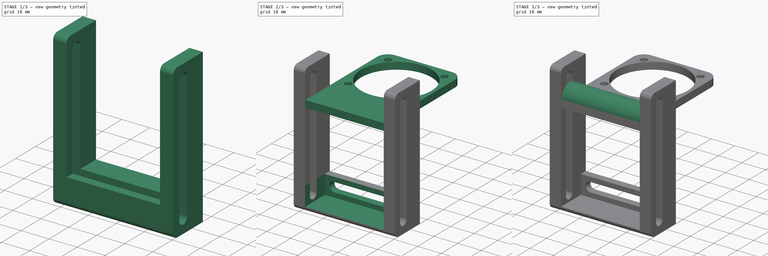
[diagram: build sequence overview — one tinted view per stage of 3, left to right]
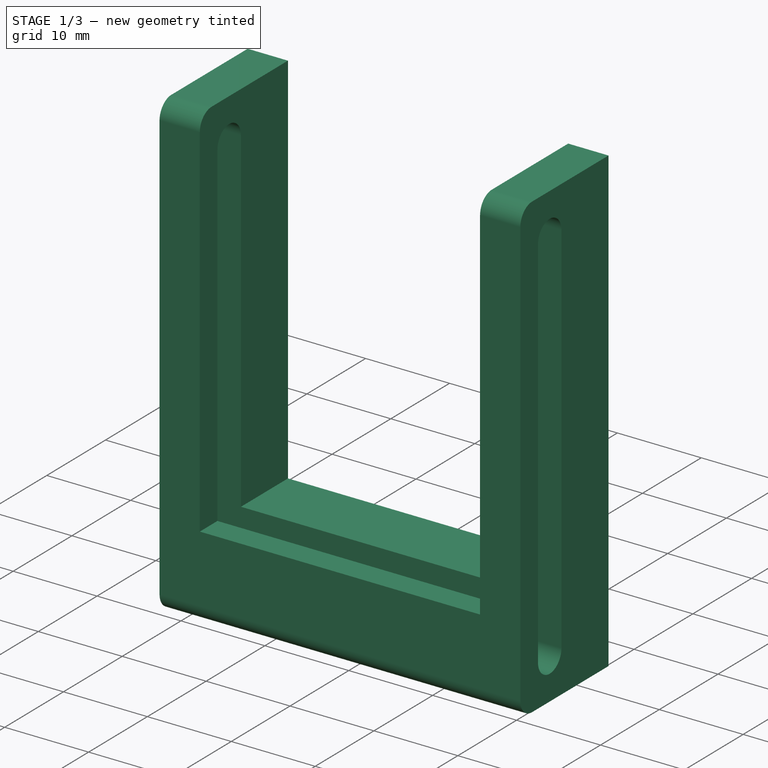
[diagram: stage 1 of 3 — iso view after this stage's code; geometry added in this stage tinted green]
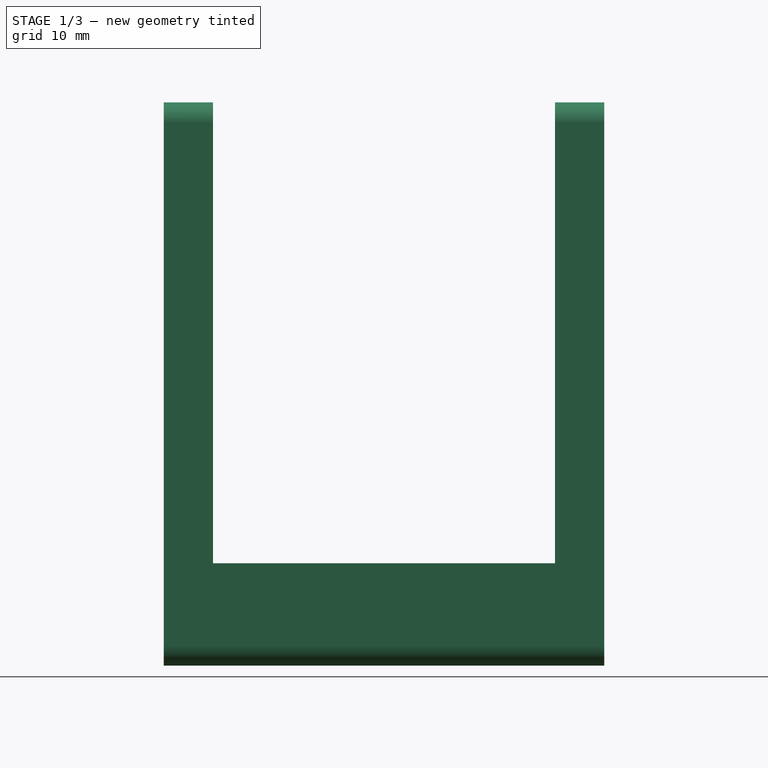
[diagram: stage 1 of 3 — front view after this stage's code; geometry added in this stage tinted green]
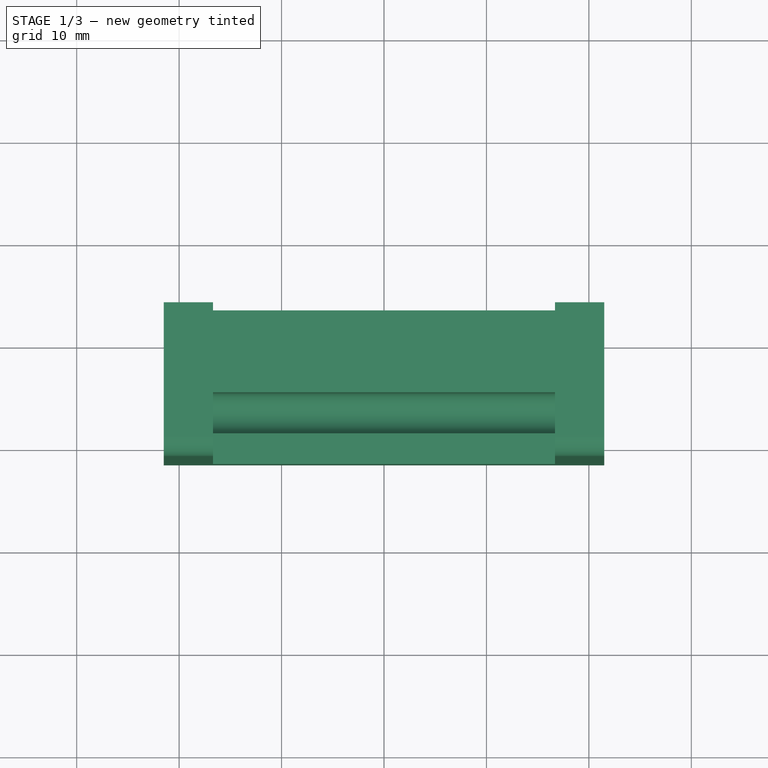
[diagram: stage 1 of 3 — top view after this stage's code; geometry added in this stage tinted green]
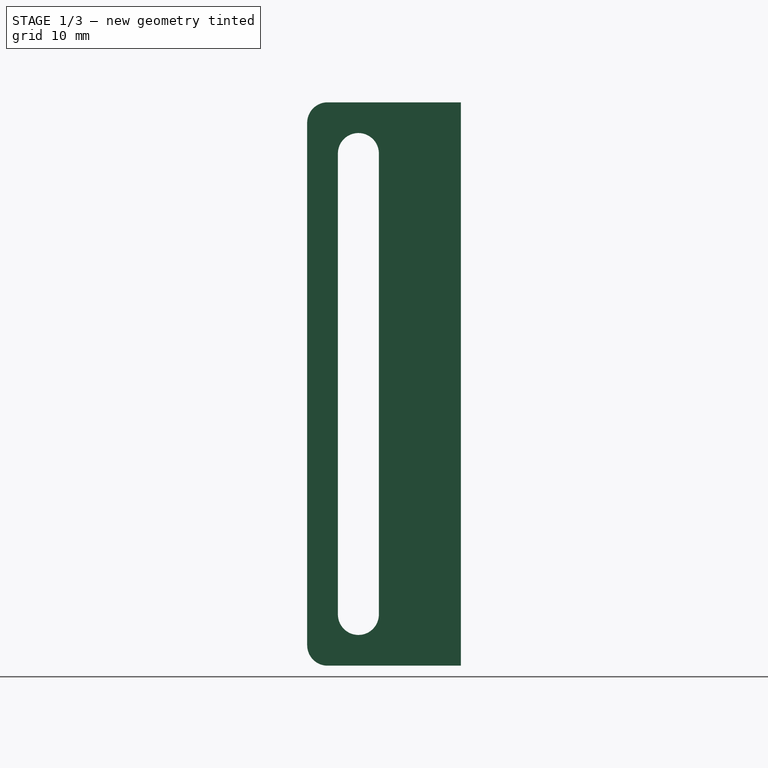
[diagram: stage 1 of 3 — right view after this stage's code; geometry added in this stage tinted green]
FCSTD DOCUMENT  (FreeCAD 0.19R24366 (Git))
Label: Fan30Stand2
License: All rights reserved
LicenseURL: http://en.wikipedia.org/wiki/All_rights_reserved
objects: Sketcher::SketchObject×7, PartDesign::Pocket×4, PartDesign::Pad×3, PartDesign::Body×2
note: 23 computed .brp shape members not serialized (recipe doc carries the construction recipe); baked Part::Feature solids carry a one-line shape summary decoded from their .brp

FEATURE [PartDesign::Body] Body  label="FanBracket"
  Group = -> [Sketch,Pad,Sketch001,Pad001,Sketch002,Pocket]
  Origin = -> Origin
  Tip = -> Pocket
FEATURE [Sketcher::SketchObject] Sketch003
  FullyConstrained = true
  MapMode = 5
  Placement = pos=(0,0,0) rot=(0.57735,0.57735,0.57735;2.0944rad)
  Support = -> [YZ_Plane001]
  sketch-geometry (15):
    g0: Circle CenterX=-26.5 CenterY=10 CenterZ=0 NormalX=0 NormalY=0 NormalZ=1 AngleXU=0 Radius=2
    g1: LineSegment StartX=-16.5 StartY=15 StartZ=0 EndX=-16.5 EndY=-40 EndZ=0
    g2: LineSegment StartX=-31.5 StartY=13 StartZ=0 EndX=-31.5 EndY=-38 EndZ=0
    g3: LineSegment StartX=-29.5 StartY=15 StartZ=0 EndX=-16.5 EndY=15 EndZ=0
    g4: ArcOfCircle CenterX=-29.5 CenterY=13 CenterZ=0 NormalX=0 NormalY=0 NormalZ=1 AngleXU=0 Radius=2 StartAngle=1.5708 EndAngle=3.14159
    g5: GeomPoint X=-31.5 Y=15 Z=0
    g6: ArcOfCircle CenterX=-26.5 CenterY=10 CenterZ=0 NormalX=0 NormalY=0 NormalZ=1 AngleXU=0 Radius=2 StartAngle=5e-16 EndAngle=3.14159
    g7: ArcOfCircle CenterX=-26.5 CenterY=-35 CenterZ=0 NormalX=0 NormalY=0 NormalZ=1 AngleXU=0 Radius=2 StartAngle=3.14159 EndAngle=6.28319
    g8: LineSegment StartX=-28.5 StartY=10 StartZ=0 EndX=-28.5 EndY=-35 EndZ=0
    g9: LineSegment StartX=-24.5 StartY=10 StartZ=0 EndX=-24.5 EndY=-35 EndZ=0
    g10: LineSegment StartX=-16.5 StartY=-40 StartZ=0 EndX=-29.5 EndY=-40 EndZ=0
    g11: ArcOfCircle CenterX=-29.5 CenterY=-38 CenterZ=0 NormalX=0 NormalY=0 NormalZ=1 AngleXU=0 Radius=2 StartAngle=3.14159 EndAngle=4.71239
    g12: GeomPoint X=-31.5 Y=-40 Z=0
    g13: LineSegment StartX=-26.5 StartY=-37 StartZ=0 EndX=-26.5 EndY=-40 EndZ=0
    g14: LineSegment StartX=-26.5 StartY=15 StartZ=0 EndX=-26.5 EndY=12 EndZ=0
  constraints (40):
    c: Vertical(g1)
    c: Vertical(g2)
    c: Coincident(g3,g1)
    c: Horizontal(g3)
    c: PointOnObject(g5,g2)
    c: PointOnObject(g5,g3)
    c: Tangent(g2,g4) = -1.5708
    c: Tangent(g3,g4) = 1.5708
    c: DistanceX(g0,g1) = 10
    c: DistanceX(g5,g1) = 15
    c: Tangent(g6,g9) = 1.5708
    c: Tangent(g6,g8) = -1.5708
    c: Tangent(g8,g7) = -1.5708
    c: Tangent(g9,g7) = 1.5708
    c: Vertical(g8)
    c: Equal(g6,g7)
    c: Coincident(g6,g0)
    c: PointOnObject(g6,g0)
    c: Diameter(g0) = 4
    c: DistanceY(g1,g1) = 55
    c: Coincident(g10,g1)
    c: Horizontal(g10)
    c: PointOnObject(g12,g2)
    c: PointOnObject(g12,g10)
    c: Tangent(g2,g11) = -1.5708
    c: Tangent(g10,g11) = 1.5708
    c: Equal(g11,g4)
    c: Radius(g11) = 2
    c: PointOnObject(g13,g7)
    c: PointOnObject(g13,g10)
    c: Vertical(g13)
    c: Perpendicular(g7,g13)
    c: PointOnObject(g14,g3)
    c: PointOnObject(g14,g6)
    c: Vertical(g14)
    c: Perpendicular(g6,g14)
    c: Equal(g14,g13)
    c: DistanceY(g13,g13) = 3
    c: DistanceX(g1) = -16.5
    c: DistanceY(g1) = -40
FEATURE [PartDesign::Pad] Pad002
  Direction = (1,1,1)
  Length = 43
  Length2 = 100
  Midplane = true
  Placement = pos=(0,0,0) rot=(0.57735,0.57735,0.57735;2.0944rad)
  Profile = -> Sketch003
  Type = 0
FEATURE [Sketcher::SketchObject] Sketch004
  ExternalGeometry = -> [Pad002]
  FullyConstrained = true
  MapMode = 5
  Placement = pos=(0,0,0) rot=(1,0,0;1.5708rad)
  Support = -> [XZ_Plane001]
  sketch-geometry (4):
    g0: LineSegment StartX=-16.7 StartY=15 StartZ=0 EndX=16.7 EndY=15 EndZ=0
    g1: LineSegment StartX=16.7 StartY=15 StartZ=0 EndX=16.7 EndY=-30 EndZ=0
    g2: LineSegment StartX=16.7 StartY=-30 StartZ=0 EndX=-16.7 EndY=-30 EndZ=0
    g3: LineSegment StartX=-16.7 StartY=-30 StartZ=0 EndX=-16.7 EndY=15 EndZ=0
  constraints (11):
    c: Coincident(g0,g1)
    c: Coincident(g1,g2)
    c: Coincident(g2,g3)
    c: Coincident(g3,g0)
    c: Horizontal(g2)
    c: Vertical(g1)
    c: Vertical(g3)
    c: PointOnObject(g0,g-3)
    c: Symmetric(g0,g0,g-2)
    c: DistanceX(g-3,g0) = 4.8
    c: DistanceY(g-4,g2) = 10
FEATURE [PartDesign::Pocket] Pocket001
  BaseFeature = -> Pad002
  Length = 5
  Length2 = 100
  Midplane = true
  Placement = pos=(0,0,0) rot=(0.57735,0.57735,0.57735;2.0944rad)
  Profile = -> Sketch004
  Type = 1
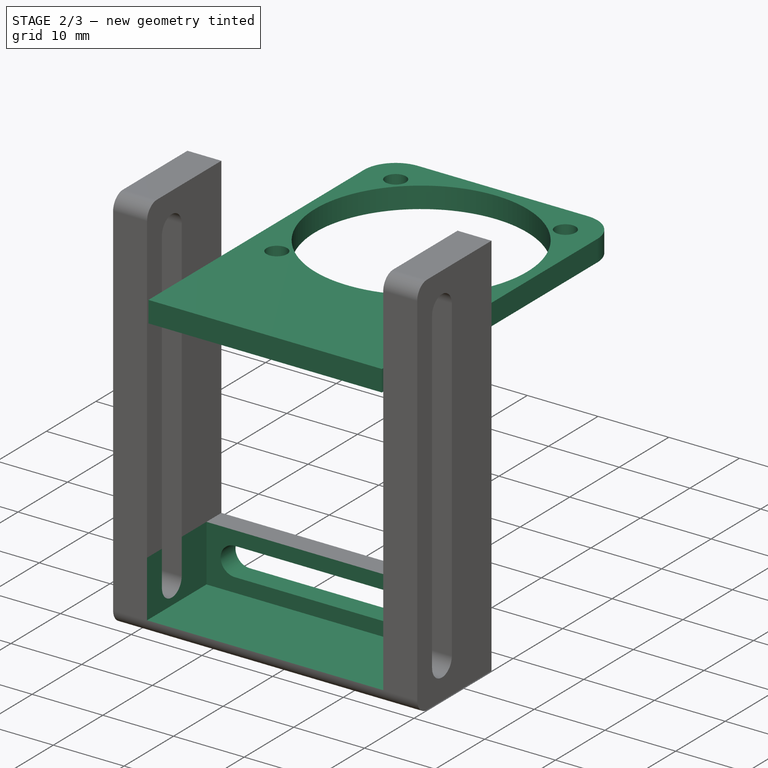
[diagram: stage 2 of 3 — iso view after this stage's code; geometry added in this stage tinted green]
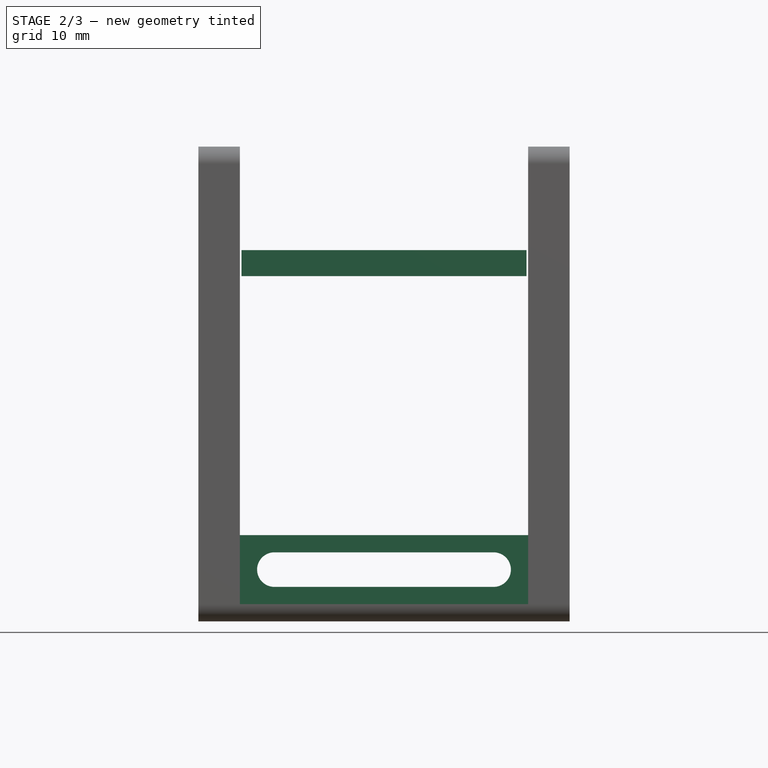
[diagram: stage 2 of 3 — front view after this stage's code; geometry added in this stage tinted green]
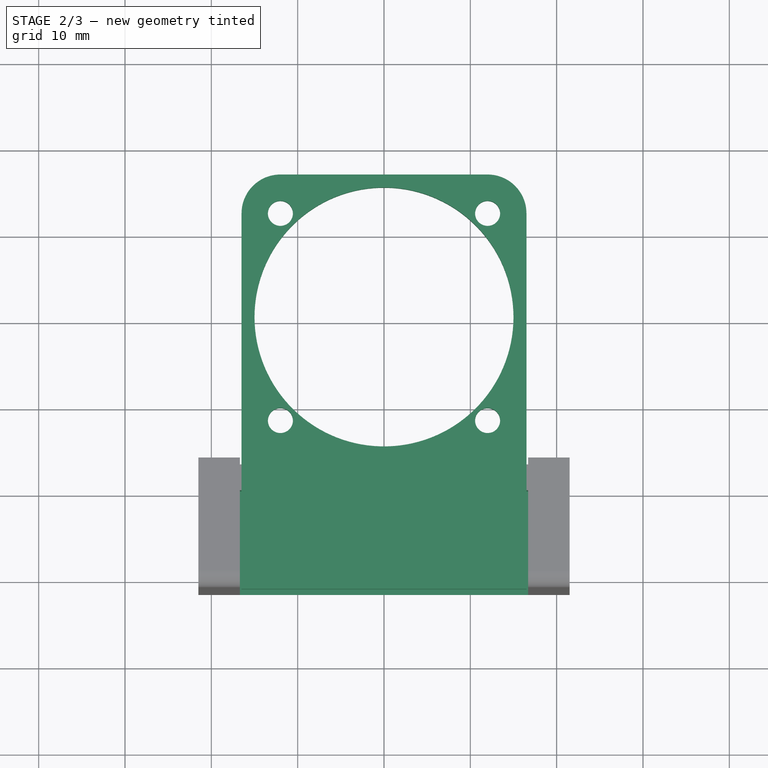
[diagram: stage 2 of 3 — top view after this stage's code; geometry added in this stage tinted green]
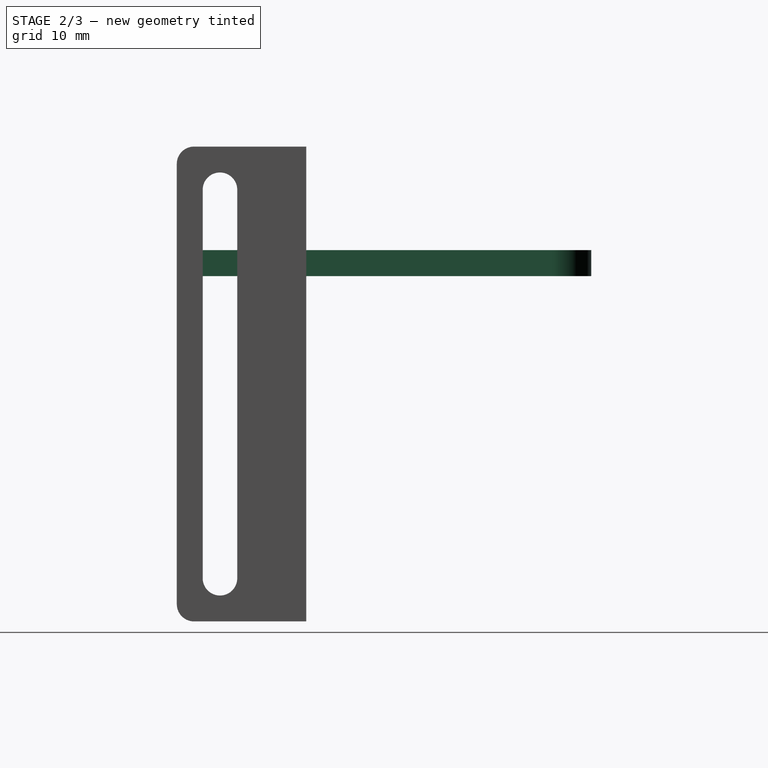
[diagram: stage 2 of 3 — right view after this stage's code; geometry added in this stage tinted green]
FEATURE [Sketcher::SketchObject] Sketch
  FullyConstrained = true
  MapMode = 5
  Support = -> [XY_Plane]
  sketch-geometry (24):
    g0: Circle CenterX=-12 CenterY=12 CenterZ=0 NormalX=0 NormalY=0 NormalZ=1 AngleXU=0 Radius=1.45
    g1: Circle CenterX=12 CenterY=12 CenterZ=0 NormalX=0 NormalY=0 NormalZ=1 AngleXU=0 Radius=1.45
    g2: Circle CenterX=-12 CenterY=-12 CenterZ=0 NormalX=0 NormalY=0 NormalZ=1 AngleXU=0 Radius=1.45
    g3: Circle CenterX=12 CenterY=-12 CenterZ=0 NormalX=0 NormalY=0 NormalZ=1 AngleXU=0 Radius=1.45
    g4: LineSegment StartX=-12 StartY=12 StartZ=0 EndX=12 EndY=12 EndZ=0
    g5: LineSegment StartX=12 StartY=12 StartZ=0 EndX=12 EndY=-12 EndZ=0
    g6: LineSegment StartX=12 StartY=-12 StartZ=0 EndX=-12 EndY=-12 EndZ=0
    g7: LineSegment StartX=-12 StartY=-12 StartZ=0 EndX=-12 EndY=12 EndZ=0
    g8: Circle CenterX=0 CenterY=0 CenterZ=0 NormalX=0 NormalY=0 NormalZ=1 AngleXU=0 Radius=15
    g9: LineSegment StartX=-12 StartY=16.5 StartZ=0 EndX=12 EndY=16.5 EndZ=0
    g10: LineSegment StartX=16.5 StartY=12 StartZ=0 EndX=16.5 EndY=-12 EndZ=0
    g11: LineSegment StartX=12 StartY=-16.5 StartZ=0 EndX=-12 EndY=-16.5 EndZ=0
    g12: LineSegment StartX=-16.5 StartY=-12 StartZ=0 EndX=-16.5 EndY=12 EndZ=0
    g13: ArcOfCircle CenterX=-12 CenterY=12 CenterZ=0 NormalX=0 NormalY=0 NormalZ=1 AngleXU=0 Radius=4.5 StartAngle=1.5708 EndAngle=3.14159
    g14: GeomPoint X=-16.5 Y=16.5 Z=0
    g15: ArcOfCircle CenterX=12 CenterY=12 CenterZ=0 NormalX=0 NormalY=0 NormalZ=1 AngleXU=0 Radius=4.5 StartAngle=3e-16 EndAngle=1.5708
    g16: GeomPoint X=16.5 Y=16.5 Z=0
    g17: ArcOfCircle CenterX=12 CenterY=-12 CenterZ=0 NormalX=0 NormalY=0 NormalZ=1 AngleXU=0 Radius=4.5 StartAngle=4.71239 EndAngle=6.28319
    g18: GeomPoint X=16.5 Y=-16.5 Z=0
    g19: ArcOfCircle CenterX=-12 CenterY=-12 CenterZ=0 NormalX=0 NormalY=0 NormalZ=1 AngleXU=0 Radius=4.5 StartAngle=3.14159 EndAngle=4.71239
    g20: GeomPoint X=-16.5 Y=-16.5 Z=0
    g21: LineSegment StartX=-16.5 StartY=-12 StartZ=0 EndX=-16.5 EndY=-31.5 EndZ=0
    g22: LineSegment StartX=16.5 StartY=-31.5 StartZ=0 EndX=16.5 EndY=-12 EndZ=0
    g23: LineSegment StartX=-16.5 StartY=-31.5 StartZ=0 EndX=16.5 EndY=-31.5 EndZ=0
  constraints (53):
    c: Coincident(g4,g5)
    c: Coincident(g5,g6)
    c: Coincident(g6,g7)
    c: Coincident(g7,g4)
    c: Horizontal(g4)
    c: Vertical(g7)
    c: Coincident(g4,g0)
    c: Coincident(g4,g1)
    c: Coincident(g5,g3)
    c: Coincident(g6,g2)
    c: Symmetric(g2,g3,g-2)
    c: Symmetric(g1,g3,g-1)
    c: Diameter(g0) = 2.9
    c: Equal(g0,g1)
    c: Equal(g0,g3)
    c: Equal(g0,g2)
    c: Equal(g4,g7)
    c: Distance(g5) = 24
    c: Coincident(g8,g-1)
    c: Diameter(g8) = 30
    c: Horizontal(g11)
    c: Vertical(g12)
    c: Symmetric(g18,g16,g-1)
    c: Symmetric(g14,g16,g-2)
    c: PointOnObject(g14,g9)
    c: PointOnObject(g14,g12)
    c: Tangent(g9,g13) = 1.5708
    c: Tangent(g12,g13) = 1.5708
    c: PointOnObject(g16,g9)
    c: PointOnObject(g16,g10)
    c: Tangent(g9,g15) = 1.5708
    c: Tangent(g10,g15) = 1.5708
    c: PointOnObject(g18,g10)
    c: PointOnObject(g18,g11)
    c: Tangent(g10,g17) = 1.5708
    c: Tangent(g11,g17) = 1.5708
    c: PointOnObject(g20,g11)
    c: PointOnObject(g20,g12)
    c: Tangent(g11,g19) = 1.5708
    c: Tangent(g12,g19) = 1.5708
    c: Equal(g12,g11)
    c: Coincident(g19,g2)
    c: Equal(g19,g13)
    c: Equal(g13,g15)
    c: Distance(g20,g18) = 33
    c: Coincident(g21,g12)
    c: Coincident(g22,g10)
    c: Vertical(g22)
    c: DistanceY(g21,g11) = 15
    c: Vertical(g21)
    c: Coincident(g23,g21)
    c: Coincident(g23,g22)
    c: Horizontal(g23)
FEATURE [PartDesign::Pad] Pad
  Direction = (1,1,1)
  Length = 3
  Length2 = 100
  Profile = -> Sketch
  Refine = true
  Type = 0
FEATURE [Sketcher::SketchObject] Sketch005
  AttachmentOffset = pos=(0,0,32.5) rot=(0,0,1;0rad)
  ExternalGeometry = -> [Pocket001]
  FullyConstrained = true
  MapMode = 5
  Placement = pos=(0,-32.5,7.2e-15) rot=(1,0,0;1.5708rad)
  Support = -> [XZ_Plane001]
  sketch-geometry (4):
    g0: LineSegment StartX=-16.7 StartY=-30 StartZ=0 EndX=16.7 EndY=-30 EndZ=0
    g1: LineSegment StartX=16.7 StartY=-30 StartZ=0 EndX=16.7 EndY=-38 EndZ=0
    g2: LineSegment StartX=16.7 StartY=-38 StartZ=0 EndX=-16.7 EndY=-38 EndZ=0
    g3: LineSegment StartX=-16.7 StartY=-38 StartZ=0 EndX=-16.7 EndY=-30 EndZ=0
  constraints (10):
    c: Coincident(g0,g1)
    c: Coincident(g1,g2)
    c: Coincident(g2,g3)
    c: Coincident(g3,g0)
    c: Horizontal(g2)
    c: Vertical(g1)
    c: Vertical(g3)
    c: Coincident(g0,g-3)
    c: Coincident(g-3,g0)
    c: DistanceY(g-4,g1) = 2
FEATURE [PartDesign::Pocket] Pocket002
  BaseFeature = -> Pocket001
  Length = 13
  Length2 = 100
  Placement = pos=(0,0,0) rot=(0.57735,0.57735,0.57735;2.0944rad)
  Profile = -> Sketch005
  Type = 0
FEATURE [Sketcher::SketchObject] Sketch006
  ExternalGeometry = -> [Pocket002]
  FullyConstrained = true
  MapMode = 5
  Placement = pos=(0,0,0) rot=(1,0,0;1.5708rad)
  Support = -> [XZ_Plane001]
  sketch-geometry (6):
    g0: ArcOfCircle CenterX=-12.7 CenterY=-34 CenterZ=0 NormalX=0 NormalY=0 NormalZ=1 AngleXU=0 Radius=2 StartAngle=1.5708 EndAngle=4.71239
    g1: ArcOfCircle CenterX=12.7 CenterY=-34 CenterZ=0 NormalX=0 NormalY=0 NormalZ=1 AngleXU=0 Radius=2 StartAngle=4.71239 EndAngle=7.85398
    g2: LineSegment StartX=-12.7 StartY=-36 StartZ=0 EndX=12.7 EndY=-36 EndZ=0
    g3: LineSegment StartX=-12.7 StartY=-32 StartZ=0 EndX=12.7 EndY=-32 EndZ=0
    g4: LineSegment StartX=-14.7 StartY=-34 StartZ=0 EndX=-16.7 EndY=-34 EndZ=0
    g5: LineSegment StartX=14.7 StartY=-34 StartZ=0 EndX=16.7 EndY=-34 EndZ=0
  constraints (17):
    c: Tangent(g0,g3) = 1.5708
    c: Tangent(g0,g2) = -1.5708
    c: Tangent(g2,g1) = -1.5708
    c: Tangent(g3,g1) = 1.5708
    c: Horizontal(g2)
    c: Equal(g0,g1)
    c: PointOnObject(g4,g0)
    c: PointOnObject(g4,g-3)
    c: Horizontal(g4)
    c: PointOnObject(g5,g1)
    c: Horizontal(g5)
    c: Perpendicular(g1,g5)
    c: Perpendicular(g0,g4)
    c: Diameter(g0) = 4
    c: Symmetric(g-4,g-4,g5)
    c: Equal(g5,g4)
    c: DistanceX(g5,g5) = 2
FEATURE [PartDesign::Pocket] Pocket003
  BaseFeature = -> Pocket002
  Length = 5
  Length2 = 100
  Midplane = true
  Placement = pos=(0,0,0) rot=(0.57735,0.57735,0.57735;2.0944rad)
  Profile = -> Sketch006
  Type = 1
FEATURE [PartDesign::Body] Body001  label="FanSupport"
  Group = -> [Sketch003,Pad002,Sketch004,Pocket001,Sketch005,Pocket002,Sketch006,Pocket003]
  Origin = -> Origin001
  Tip = -> Pocket003
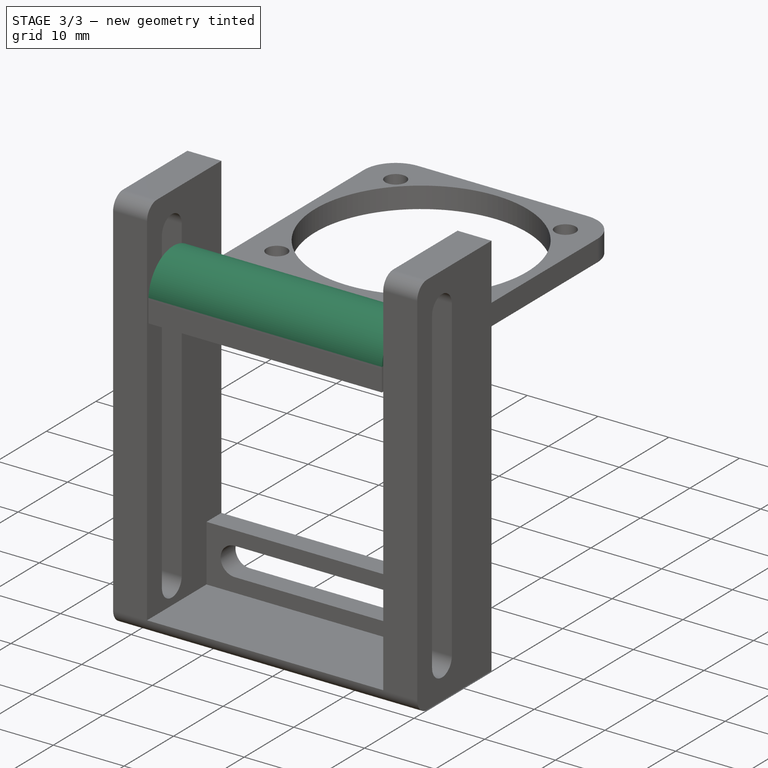
[diagram: stage 3 of 3 — iso view after this stage's code; geometry added in this stage tinted green]
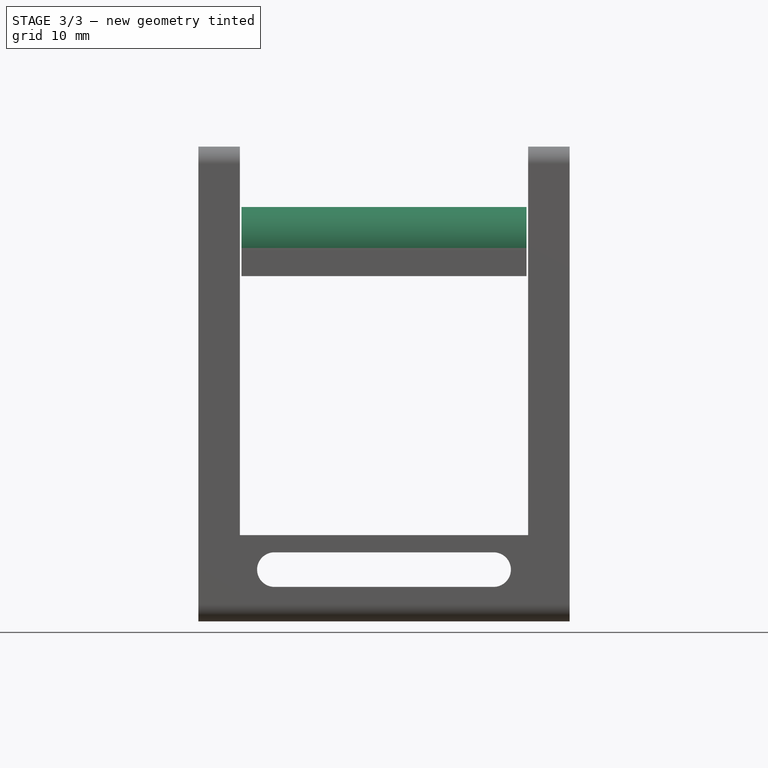
[diagram: stage 3 of 3 — front view after this stage's code; geometry added in this stage tinted green]
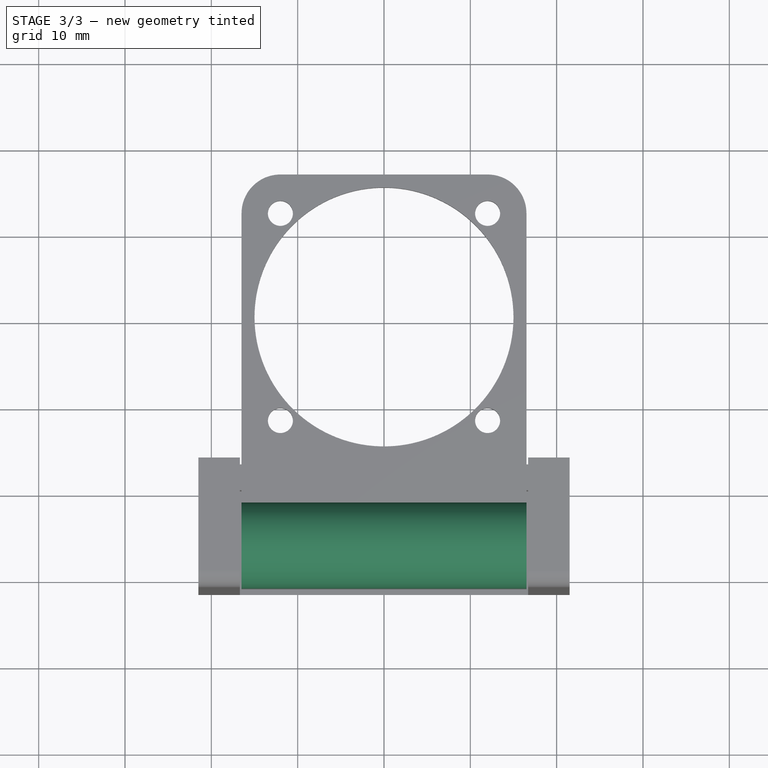
[diagram: stage 3 of 3 — top view after this stage's code; geometry added in this stage tinted green]
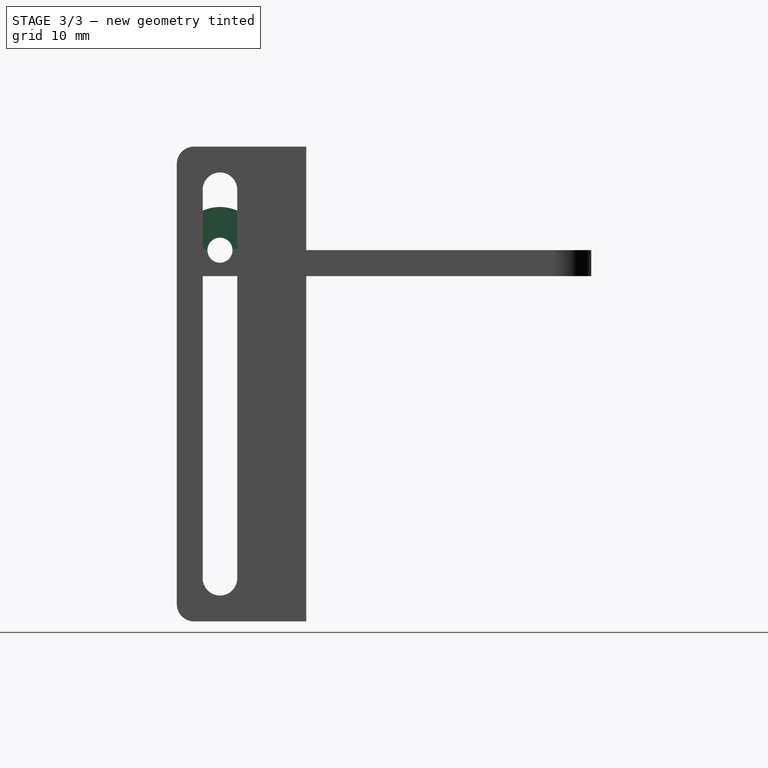
[diagram: stage 3 of 3 — right view after this stage's code; geometry added in this stage tinted green]
FEATURE [Sketcher::SketchObject] Sketch001
  ExternalGeometry = -> [Pad]
  FullyConstrained = true
  MapMode = 5
  Placement = pos=(0,0,0) rot=(0.57735,0.57735,0.57735;2.0944rad)
  Support = -> [YZ_Plane]
  sketch-geometry (4):
    g0: ArcOfCircle CenterX=-26.5 CenterY=3 CenterZ=0 NormalX=0 NormalY=0 NormalZ=1 AngleXU=0 Radius=5 StartAngle=3e-16 EndAngle=3.14159
    g1: ArcOfCircle CenterX=-26.5 CenterY=3 CenterZ=0 NormalX=0 NormalY=0 NormalZ=1 AngleXU=0 Radius=1.45 StartAngle=5e-16 EndAngle=3.14159
    g2: LineSegment StartX=-31.5 StartY=3 StartZ=0 EndX=-27.95 EndY=3 EndZ=0
    g3: LineSegment StartX=-25.05 StartY=3 StartZ=0 EndX=-21.5 EndY=3 EndZ=0
  constraints (12):
    c: Coincident(g0,g-3)
    c: PointOnObject(g0,g-4)
    c: PointOnObject(g0,g-4)
    c: Coincident(g1,g0)
    c: PointOnObject(g1,g-4)
    c: PointOnObject(g1,g-4)
    c: Diameter(g1) = 2.9
    c: DistanceX(g0,g0) = 5
    c: Coincident(g2,g0)
    c: Coincident(g2,g1)
    c: Coincident(g3,g1)
    c: Coincident(g3,g0)
FEATURE [PartDesign::Pad] Pad001
  BaseFeature = -> Pad
  Direction = (1,1,1)
  Length = 33
  Length2 = 86
  Midplane = true
  Profile = -> Sketch001
  Refine = true
  Type = 0
FEATURE [Sketcher::SketchObject] Sketch002
  ExternalGeometry = -> [Pad001]
  FullyConstrained = true
  MapMode = 5
  Placement = pos=(0,0,0) rot=(0.57735,0.57735,0.57735;2.0944rad)
  Support = -> [YZ_Plane]
  sketch-geometry (1):
    g0: Circle CenterX=-26.5 CenterY=3 CenterZ=0 NormalX=0 NormalY=0 NormalZ=1 AngleXU=0 Radius=1.45
  constraints (2):
    c: Coincident(g0,g-3)
    c: Equal(g0,g-3)
FEATURE [PartDesign::Pocket] Pocket
  BaseFeature = -> Pad001
  Length = 5
  Length2 = 100
  Midplane = true
  Profile = -> Sketch002
  Type = 1
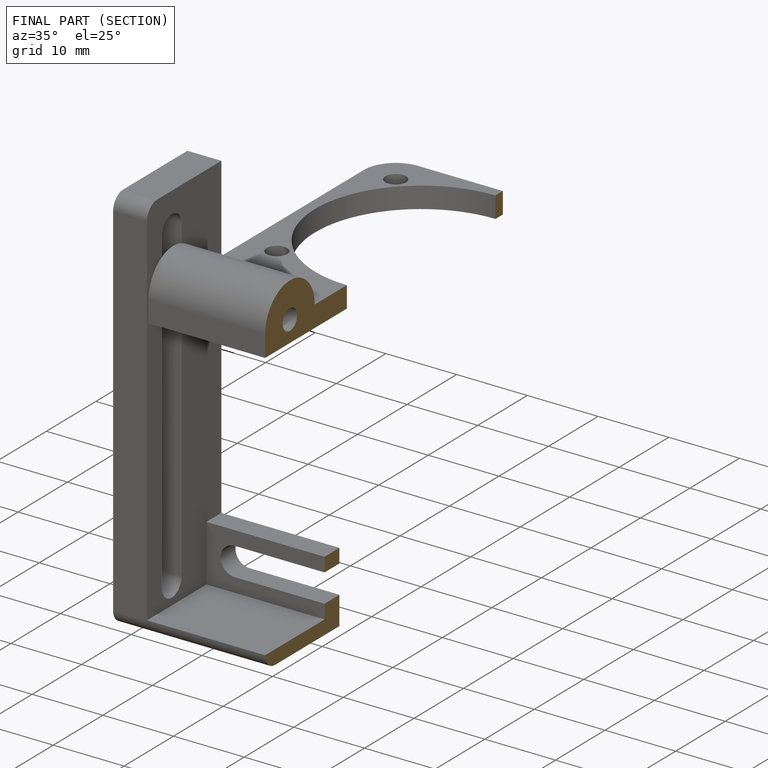
[diagram: finished part — half-section view (interior)]
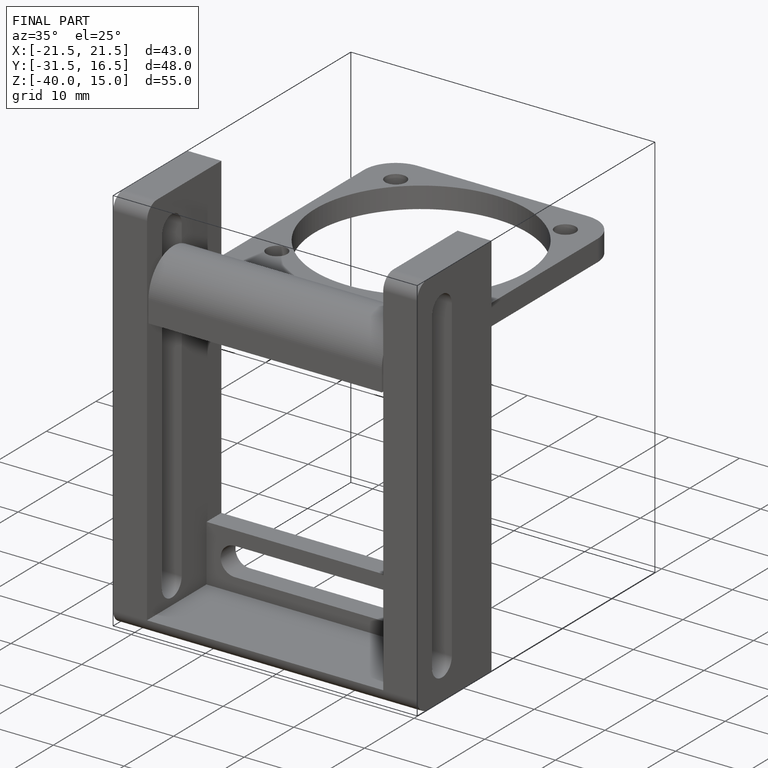
[diagram: finished part — iso view with bounding-box wireframe]
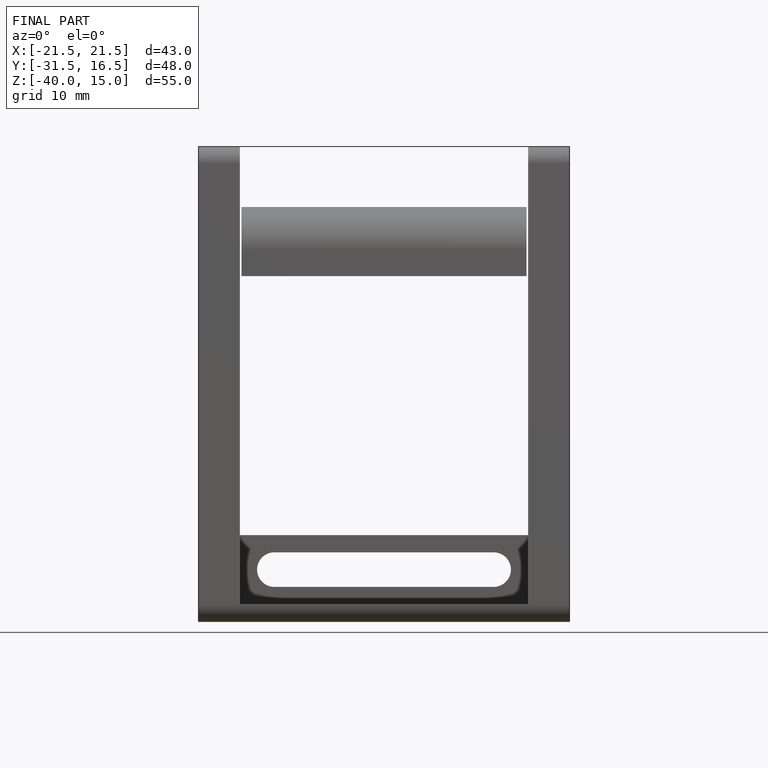
[diagram: finished part — front view with bounding-box wireframe]
